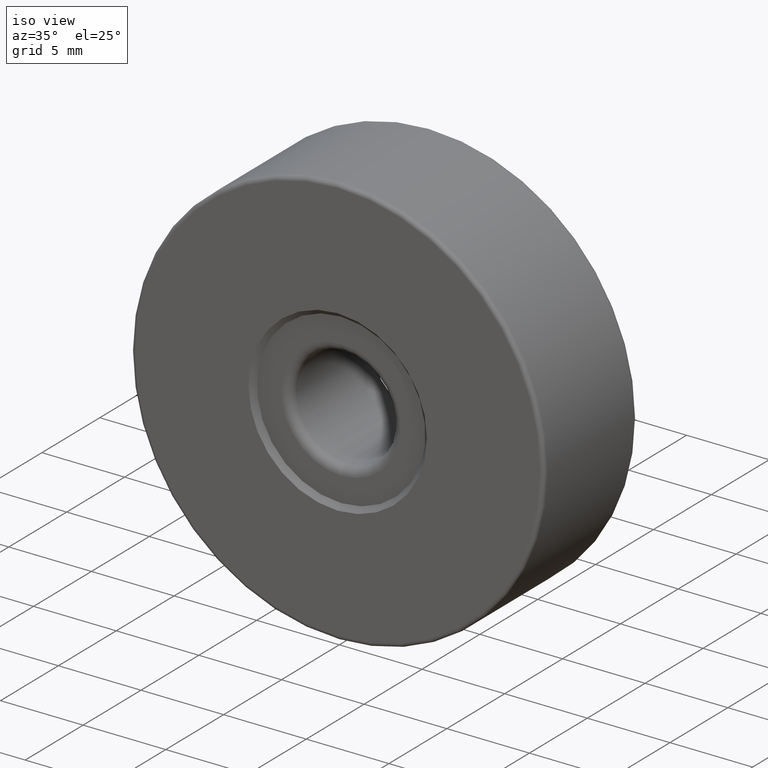
[diagram: clean part render]
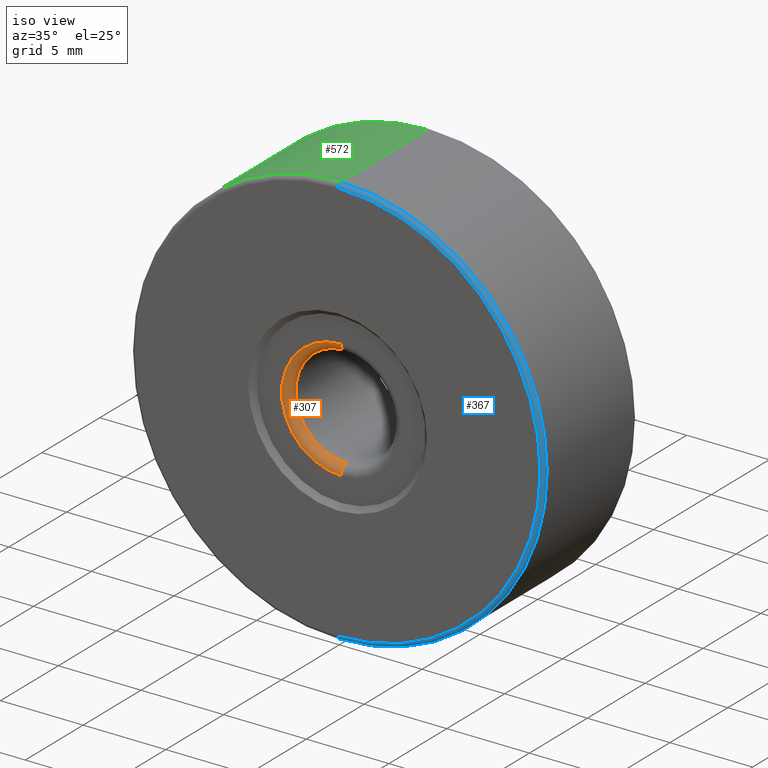
[diagram: same view with three faces highlighted in distinct colors, each labeled with its STEP entity id]
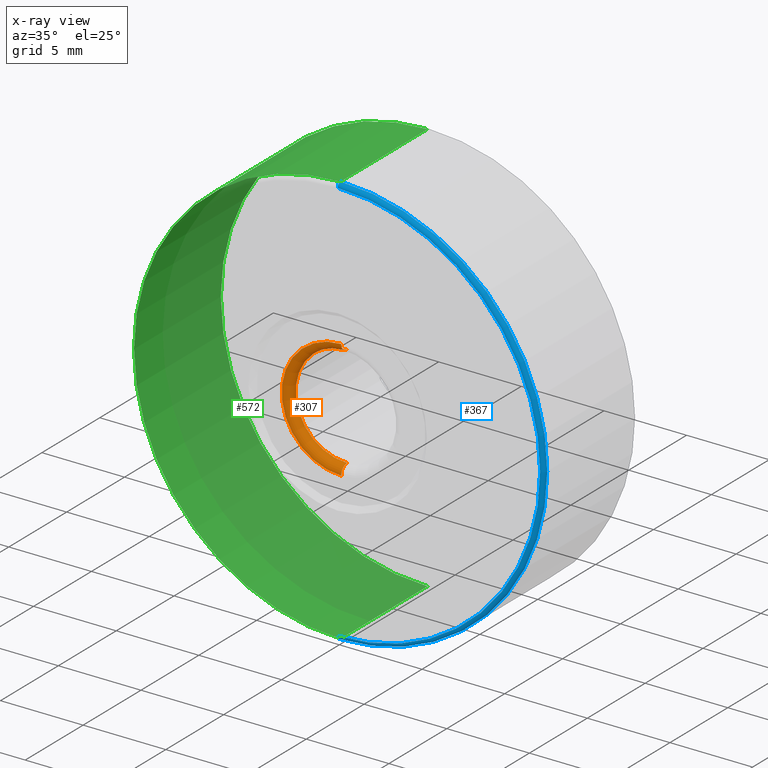
[diagram: x-ray of the same camera — body ghosted, the three highlighted faces saturated]
A machine part, iso view with three faces highlighted in distinct colors.
The next image is the same camera in x-ray (body ghosted, the three faces saturated) — at least one of them is partly hidden behind the body in this view.
Their STEP definitions:

[orange] entity #307 — the highlighted toroidal blend (fillet) surface has major radius 3.6 mm and minor (blend) radius 0.5 mm.
#15 = AXIS2_PLACEMENT_3D ( 'NONE', #544, #295, #583 ) ;
#20 = DIRECTION ( 'NONE',  ( 0.0000000000000000000, 0.0000000000000000000, -1.000000000000000000 ) ) ;
#29 = AXIS2_PLACEMENT_3D ( 'NONE', #469, #50, #424 ) ;
#50 = DIRECTION ( 'NONE',  ( 0.0000000000000000000, -1.000000000000000000, 0.0000000000000000000 ) ) ;
#101 = CIRCLE ( 'NONE', #399, 3.599999999999999201 ) ;
#110 = CARTESIAN_POINT ( 'NONE',  ( -4.682026255059962949, -5.294975976998274270, 28.60000000000000142 ) ) ;
#112 = CIRCLE ( 'NONE', #459, 0.5000000000000004441 ) ;
#114 = TOROIDAL_SURFACE ( 'NONE', #15, 3.600000000000000089, 0.5000000000000000000 ) ;
#116 = ORIENTED_EDGE ( 'NONE', *, *, #582, .F. ) ;
#143 = DIRECTION ( 'NONE',  ( 0.0000000000000000000, 0.0000000000000000000, 1.000000000000000000 ) ) ;
#187 = VERTEX_POINT ( 'NONE', #221 ) ;
#193 = EDGE_CURVE ( 'NONE', #323, #421, #238, .T. ) ;
#205 = CARTESIAN_POINT ( 'NONE',  ( -4.682026255059964726, -4.794975976998275158, 28.10000000000000142 ) ) ;
#219 = AXIS2_PLACEMENT_3D ( 'NONE', #311, #518, #273 ) ;
#221 = CARTESIAN_POINT ( 'NONE',  ( -4.682026255059964726, -4.794975976998275158, 21.90000000000000213 ) ) ;
#232 = VERTEX_POINT ( 'NONE', #484 ) ;
#238 = CIRCLE ( 'NONE', #219, 0.5000000000000004441 ) ;
#273 = DIRECTION ( 'NONE',  ( 0.0000000000000000000, 0.0000000000000000000, -1.000000000000000000 ) ) ;
#279 = CIRCLE ( 'NONE', #29, 3.099999999999998757 ) ;
#286 = ORIENTED_EDGE ( 'NONE', *, *, #429, .F. ) ;
#295 = DIRECTION ( 'NONE',  ( 0.0000000000000000000, -1.000000000000000000, 0.0000000000000000000 ) ) ;
#307 = ADVANCED_FACE ( 'NONE', ( #404 ), #114, .T. ) ;
#311 = CARTESIAN_POINT ( 'NONE',  ( -4.682026255059963837, -4.794975976998275158, 28.60000000000000142 ) ) ;
#322 = ORIENTED_EDGE ( 'NONE', *, *, #193, .F. ) ;
#323 = VERTEX_POINT ( 'NONE', #110 ) ;
#399 = AXIS2_PLACEMENT_3D ( 'NONE', #585, #442, #20 ) ;
#404 = FACE_OUTER_BOUND ( 'NONE', #495, .T. ) ;
#418 = CARTESIAN_POINT ( 'NONE',  ( -4.682026255059964726, -4.794975976998275158, 21.40000000000000213 ) ) ;
#421 = VERTEX_POINT ( 'NONE', #205 ) ;
#424 = DIRECTION ( 'NONE',  ( 0.0000000000000000000, 0.0000000000000000000, -1.000000000000000000 ) ) ;
#429 = EDGE_CURVE ( 'NONE', #232, #323, #101, .T. ) ;
#442 = DIRECTION ( 'NONE',  ( -0.0000000000000000000, 1.000000000000000000, -0.0000000000000000000 ) ) ;
#459 = AXIS2_PLACEMENT_3D ( 'NONE', #418, #575, #143 ) ;
#469 = CARTESIAN_POINT ( 'NONE',  ( -4.682026255059964726, -4.794975976998275158, 25.00000000000000000 ) ) ;
#484 = CARTESIAN_POINT ( 'NONE',  ( -4.682026255059964726, -5.294975976998274270, 21.40000000000000213 ) ) ;
#495 = EDGE_LOOP ( 'NONE', ( #322, #286, #584, #116 ) ) ;
#518 = DIRECTION ( 'NONE',  ( 1.000000000000000000, 0.0000000000000000000, -1.224646799147353207E-16 ) ) ;
#544 = CARTESIAN_POINT ( 'NONE',  ( -4.682026255059964726, -4.794975976998275158, 25.00000000000000000 ) ) ;
#575 = DIRECTION ( 'NONE',  ( -1.000000000000000000, -0.0000000000000000000, -0.0000000000000000000 ) ) ;
#582 = EDGE_CURVE ( 'NONE', #421, #187, #279, .T. ) ;
#583 = DIRECTION ( 'NONE',  ( 0.0000000000000000000, 0.0000000000000000000, -1.000000000000000000 ) ) ;
#584 = ORIENTED_EDGE ( 'NONE', *, *, #611, .T. ) ;
#585 = CARTESIAN_POINT ( 'NONE',  ( -4.682026255059964726, -5.294975976998275158, 25.00000000000000000 ) ) ;
#611 = EDGE_CURVE ( 'NONE', #232, #187, #112, .T. ) ;

[blue] entity #367 — the highlighted toroidal blend (fillet) surface has major radius 12.25 mm and minor (blend) radius 0.25 mm.
#8 = CARTESIAN_POINT ( 'NONE',  ( -4.682026255059962949, -5.594975976998274980, 12.75000000000000178 ) ) ;
#24 = CARTESIAN_POINT ( 'NONE',  ( -4.682026255059964726, -5.344975976998274980, 25.00000000000000000 ) ) ;
#30 = CARTESIAN_POINT ( 'NONE',  ( -4.682026255059964726, -5.594975976998274980, 25.00000000000000000 ) ) ;
#37 = DIRECTION ( 'NONE',  ( -0.0000000000000000000, -1.000000000000000000, -0.0000000000000000000 ) ) ;
#40 = CARTESIAN_POINT ( 'NONE',  ( -4.682026255059964726, -5.344975976998274980, 37.50000000000000711 ) ) ;
#46 = VERTEX_POINT ( 'NONE', #440 ) ;
#55 = DIRECTION ( 'NONE',  ( 0.0000000000000000000, 0.0000000000000000000, -1.000000000000000000 ) ) ;
#62 = DIRECTION ( 'NONE',  ( -1.000000000000000000, 0.0000000000000000000, 0.0000000000000000000 ) ) ;
#73 = DIRECTION ( 'NONE',  ( 0.0000000000000000000, 1.000000000000000000, 0.0000000000000000000 ) ) ;
#86 = DIRECTION ( 'NONE',  ( 0.0000000000000000000, 0.0000000000000000000, 1.000000000000000000 ) ) ;
#105 = DIRECTION ( 'NONE',  ( 1.000000000000000000, -0.0000000000000000000, 1.224646799147353207E-16 ) ) ;
#107 = DIRECTION ( 'NONE',  ( 0.0000000000000000000, 0.0000000000000000000, 1.000000000000000000 ) ) ;
#120 = EDGE_CURVE ( 'NONE', #264, #46, #485, .T. ) ;
#122 = AXIS2_PLACEMENT_3D ( 'NONE', #156, #73, #391 ) ;
#141 = VERTEX_POINT ( 'NONE', #40 ) ;
#154 = DIRECTION ( 'NONE',  ( 0.0000000000000000000, 1.000000000000000000, 0.0000000000000000000 ) ) ;
#156 = CARTESIAN_POINT ( 'NONE',  ( -4.682026255059964726, -5.344975976998274980, 25.00000000000000000 ) ) ;
#165 = FACE_OUTER_BOUND ( 'NONE', #249, .T. ) ;
#196 = ORIENTED_EDGE ( 'NONE', *, *, #481, .F. ) ;
#218 = CIRCLE ( 'NONE', #337, 12.50000000000000355 ) ;
#234 = EDGE_CURVE ( 'NONE', #264, #310, #470, .T. ) ;
#249 = EDGE_LOOP ( 'NONE', ( #577, #525, #482, #196 ) ) ;
#250 = TOROIDAL_SURFACE ( 'NONE', #122, 12.25000000000000000, 0.2500000000000000000 ) ;
#264 = VERTEX_POINT ( 'NONE', #8 ) ;
#284 = CARTESIAN_POINT ( 'NONE',  ( -4.682026255059962949, -5.344975976998274980, 12.75000000000000178 ) ) ;
#287 = AXIS2_PLACEMENT_3D ( 'NONE', #284, #105, #55 ) ;
#304 = AXIS2_PLACEMENT_3D ( 'NONE', #30, #37, #86 ) ;
#310 = VERTEX_POINT ( 'NONE', #343 ) ;
#337 = AXIS2_PLACEMENT_3D ( 'NONE', #24, #154, #396 ) ;
#341 = CARTESIAN_POINT ( 'NONE',  ( -4.682026255059964726, -5.344975976998274980, 37.25000000000000711 ) ) ;
#343 = CARTESIAN_POINT ( 'NONE',  ( -4.682026255059962949, -5.344975976998274980, 12.50000000000000000 ) ) ;
#367 = ADVANCED_FACE ( 'NONE', ( #165 ), #250, .T. ) ;
#391 = DIRECTION ( 'NONE',  ( 0.0000000000000000000, 0.0000000000000000000, 1.000000000000000000 ) ) ;
#396 = DIRECTION ( 'NONE',  ( 0.0000000000000000000, 0.0000000000000000000, 1.000000000000000000 ) ) ;
#440 = CARTESIAN_POINT ( 'NONE',  ( -4.682026255059964726, -5.594975976998274980, 37.25000000000000711 ) ) ;
#470 = CIRCLE ( 'NONE', #287, 0.2500000000000002220 ) ;
#473 = EDGE_CURVE ( 'NONE', #141, #310, #218, .T. ) ;
#481 = EDGE_CURVE ( 'NONE', #46, #141, #563, .T. ) ;
#482 = ORIENTED_EDGE ( 'NONE', *, *, #473, .F. ) ;
#485 = CIRCLE ( 'NONE', #304, 12.25000000000000355 ) ;
#525 = ORIENTED_EDGE ( 'NONE', *, *, #234, .T. ) ;
#563 = CIRCLE ( 'NONE', #612, 0.2500000000000002220 ) ;
#577 = ORIENTED_EDGE ( 'NONE', *, *, #120, .F. ) ;
#612 = AXIS2_PLACEMENT_3D ( 'NONE', #341, #62, #107 ) ;

[green] entity #572 — the highlighted cylindrical surface (partial cylindrical patch) has radius 12.5 mm, axis along (-0, -1, -0).
#6 = DIRECTION ( 'NONE',  ( 0.0000000000000000000, 0.0000000000000000000, 1.000000000000000000 ) ) ;
#40 = CARTESIAN_POINT ( 'NONE',  ( -4.682026255059964726, -5.344975976998274980, 37.50000000000000711 ) ) ;
#48 = LINE ( 'NONE', #235, #281 ) ;
#52 = DIRECTION ( 'NONE',  ( -0.0000000000000000000, -1.000000000000000000, -0.0000000000000000000 ) ) ;
#69 = ORIENTED_EDGE ( 'NONE', *, *, #211, .T. ) ;
#88 = CARTESIAN_POINT ( 'NONE',  ( -4.682026255059962949, 2.155024023001725020, 37.50000000000000711 ) ) ;
#98 = CARTESIAN_POINT ( 'NONE',  ( -4.682026255059964726, 2.155024023001725020, 25.00000000000000000 ) ) ;
#141 = VERTEX_POINT ( 'NONE', #40 ) ;
#148 = DIRECTION ( 'NONE',  ( 0.0000000000000000000, 0.0000000000000000000, -1.000000000000000000 ) ) ;
#169 = DIRECTION ( 'NONE',  ( 0.0000000000000000000, 0.0000000000000000000, 1.000000000000000000 ) ) ;
#171 = EDGE_LOOP ( 'NONE', ( #615, #255, #69, #283 ) ) ;
#172 = CIRCLE ( 'NONE', #589, 12.50000000000000355 ) ;
#198 = VERTEX_POINT ( 'NONE', #88 ) ;
#211 = EDGE_CURVE ( 'NONE', #466, #310, #48, .T. ) ;
#225 = AXIS2_PLACEMENT_3D ( 'NONE', #380, #52, #148 ) ;
#235 = CARTESIAN_POINT ( 'NONE',  ( -4.682026255059964726, 2.405024023001725020, 12.50000000000000000 ) ) ;
#255 = ORIENTED_EDGE ( 'NONE', *, *, #527, .T. ) ;
#262 = CARTESIAN_POINT ( 'NONE',  ( -4.682026255059964726, -5.344975976998274980, 25.00000000000000000 ) ) ;
#281 = VECTOR ( 'NONE', #430, 1000.000000000000000 ) ;
#283 = ORIENTED_EDGE ( 'NONE', *, *, #377, .T. ) ;
#288 = FACE_OUTER_BOUND ( 'NONE', #171, .T. ) ;
#310 = VERTEX_POINT ( 'NONE', #343 ) ;
#343 = CARTESIAN_POINT ( 'NONE',  ( -4.682026255059962949, -5.344975976998274980, 12.50000000000000000 ) ) ;
#345 = EDGE_CURVE ( 'NONE', #198, #141, #597, .T. ) ;
#377 = EDGE_CURVE ( 'NONE', #310, #141, #471, .T. ) ;
#380 = CARTESIAN_POINT ( 'NONE',  ( -4.682026255059964726, 2.405024023001725020, 25.00000000000000000 ) ) ;
#402 = CARTESIAN_POINT ( 'NONE',  ( -4.682026255059962949, 2.405024023001725020, 37.50000000000000711 ) ) ;
#428 = DIRECTION ( 'NONE',  ( -0.0000000000000000000, -1.000000000000000000, -0.0000000000000000000 ) ) ;
#430 = DIRECTION ( 'NONE',  ( -0.0000000000000000000, -1.000000000000000000, -0.0000000000000000000 ) ) ;
#437 = VECTOR ( 'NONE', #500, 1000.000000000000000 ) ;
#451 = DIRECTION ( 'NONE',  ( 0.0000000000000000000, 1.000000000000000000, 0.0000000000000000000 ) ) ;
#466 = VERTEX_POINT ( 'NONE', #529 ) ;
#471 = CIRCLE ( 'NONE', #501, 12.50000000000000355 ) ;
#480 = CYLINDRICAL_SURFACE ( 'NONE', #225, 12.50000000000000000 ) ;
#500 = DIRECTION ( 'NONE',  ( -0.0000000000000000000, -1.000000000000000000, -0.0000000000000000000 ) ) ;
#501 = AXIS2_PLACEMENT_3D ( 'NONE', #262, #451, #169 ) ;
#527 = EDGE_CURVE ( 'NONE', #198, #466, #172, .T. ) ;
#529 = CARTESIAN_POINT ( 'NONE',  ( -4.682026255059964726, 2.155024023001725020, 12.50000000000000000 ) ) ;
#572 = ADVANCED_FACE ( 'NONE', ( #288 ), #480, .T. ) ;
#589 = AXIS2_PLACEMENT_3D ( 'NONE', #98, #428, #6 ) ;
#597 = LINE ( 'NONE', #402, #437 ) ;
#615 = ORIENTED_EDGE ( 'NONE', *, *, #345, .F. ) ;